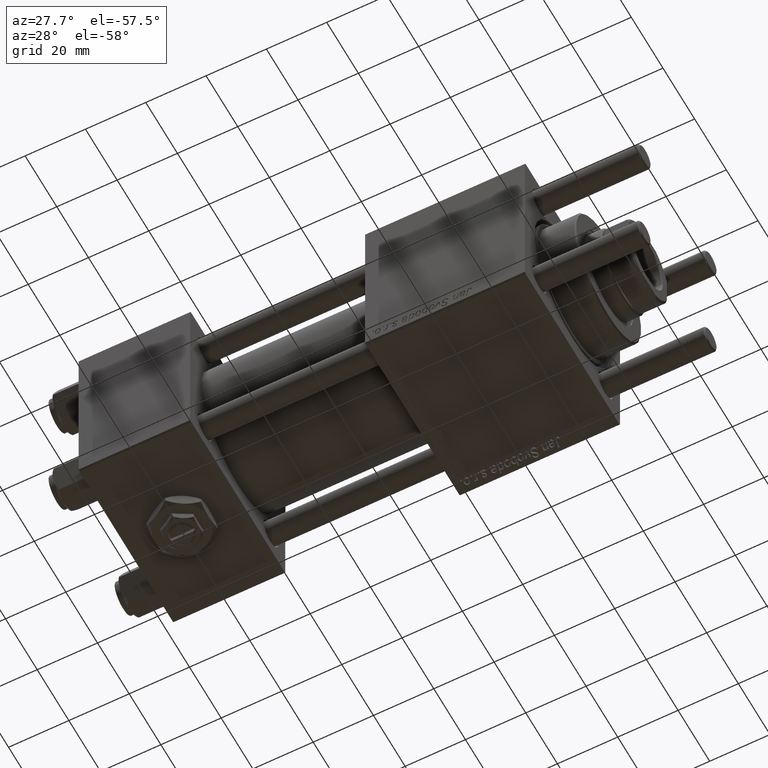
[diagram: clean part render]
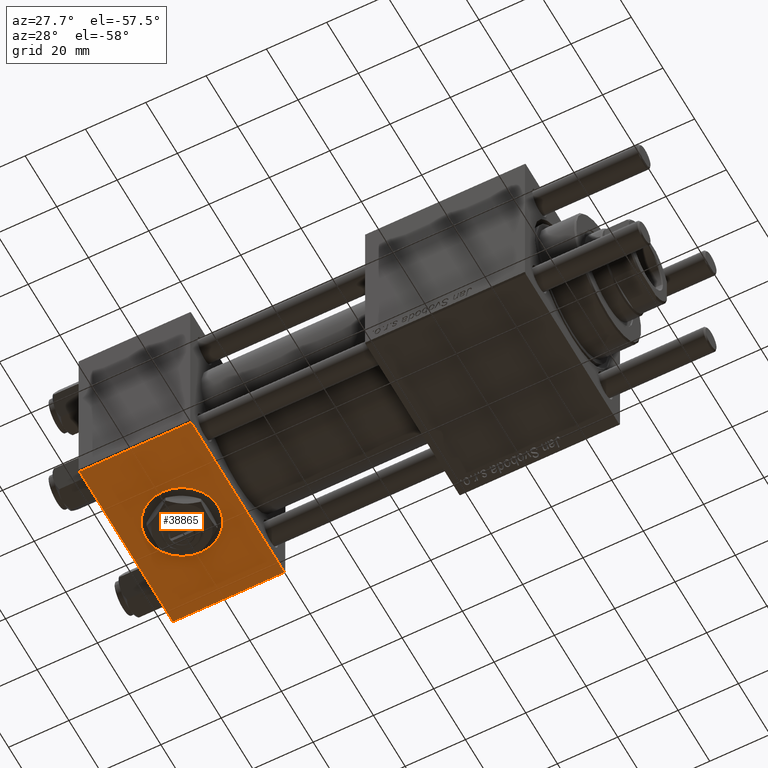
[diagram: same view with one face highlighted and labeled with its STEP entity id]
A machine part, auxiliary view. The second image highlights one B-rep face of the part: STEP entity #38865.
In plain terms, the highlighted planar face has unit normal (0, 0, -1).
Its self-contained STEP definition (entity closure, byte-faithful):
#15 = CARTESIAN_POINT ( 'NONE',  ( 0.000000000000000000, -29.50000000000000000, -30.00000000000000711 ) ) ;
#1673 = CARTESIAN_POINT ( 'NONE',  ( 0.000000000000000000, 29.99999999999999289, -30.00000000000000000 ) ) ;
#2518 = CARTESIAN_POINT ( 'NONE',  ( 37.00000000000000000, 29.99999999999999289, -30.00000000000000000 ) ) ;
#2575 = CARTESIAN_POINT ( 'NONE',  ( 37.00000000000000000, -29.50000000000000000, -30.00000000000000711 ) ) ;
#2889 = VERTEX_POINT ( 'NONE', #21973 ) ;
#3768 = EDGE_CURVE ( 'NONE', #47755, #53820, #36543, .T. ) ;
#4067 = CARTESIAN_POINT ( 'NONE',  ( 18.50000000000000355, 12.00000000000000355, -30.00000000000000711 ) ) ;
#6963 = DIRECTION ( 'NONE',  ( 0.000000000000000000, -1.000000000000000000, -1.156482317317871725E-16 ) ) ;
#9403 = LINE ( 'NONE', #27481, #41468 ) ;
#9572 = DIRECTION ( 'NONE',  ( 0.000000000000000000, -1.734723475976806848E-16, -1.000000000000000000 ) ) ;
#12965 = EDGE_CURVE ( 'NONE', #2889, #45338, #20592, .T. ) ;
#12995 = EDGE_CURVE ( 'NONE', #53820, #24082, #39392, .T. ) ;
#13316 = ORIENTED_EDGE ( 'NONE', *, *, #12995, .T. ) ;
#13902 = DIRECTION ( 'NONE',  ( -1.000000000000000000, 0.000000000000000000, 0.000000000000000000 ) ) ;
#13968 = ORIENTED_EDGE ( 'NONE', *, *, #3768, .T. ) ;
#14028 = CIRCLE ( 'NONE', #50937, 12.00000000000000178 ) ;
#14600 = DIRECTION ( 'NONE',  ( 0.000000000000000000, 1.000000000000000000, -2.891205793294677833E-16 ) ) ;
#15186 = EDGE_CURVE ( 'NONE', #45338, #2889, #14028, .T. ) ;
#16168 = ORIENTED_EDGE ( 'NONE', *, *, #40084, .F. ) ;
#17374 = ORIENTED_EDGE ( 'NONE', *, *, #15186, .F. ) ;
#20592 = CIRCLE ( 'NONE', #49874, 12.00000000000000178 ) ;
#21226 = VECTOR ( 'NONE', #32104, 1000.000000000000000 ) ;
#21466 = ORIENTED_EDGE ( 'NONE', *, *, #47953, .T. ) ;
#21973 = CARTESIAN_POINT ( 'NONE',  ( 18.50000000000000355, -12.00000000000000000, -30.00000000000000000 ) ) ;
#23170 = EDGE_LOOP ( 'NONE', ( #16168, #21466, #13968, #13316 ) ) ;
#23259 = VECTOR ( 'NONE', #6963, 1000.000000000000000 ) ;
#24082 = VERTEX_POINT ( 'NONE', #15 ) ;
#25026 = FACE_BOUND ( 'NONE', #34798, .T. ) ;
#25320 = DIRECTION ( 'NONE',  ( 0.000000000000000000, 1.156482317317871725E-16, -1.000000000000000000 ) ) ;
#27481 = CARTESIAN_POINT ( 'NONE',  ( 37.00000000000000000, 29.49999999999997868, -30.00000000000000000 ) ) ;
#32104 = DIRECTION ( 'NONE',  ( 0.000000000000000000, -1.000000000000000000, -1.156482317317871725E-16 ) ) ;
#34798 = EDGE_LOOP ( 'NONE', ( #17374, #51520 ) ) ;
#36543 = LINE ( 'NONE', #37414, #21226 ) ;
#37414 = CARTESIAN_POINT ( 'NONE',  ( 37.00000000000000000, 29.99999999999999289, -30.00000000000000000 ) ) ;
#38382 = CARTESIAN_POINT ( 'NONE',  ( 0.000000000000000000, 29.49999999999997868, -30.00000000000000000 ) ) ;
#38865 = ADVANCED_FACE ( 'NONE', ( #25026, #56725 ), #43071, .T. ) ;
#39392 = LINE ( 'NONE', #49438, #52719 ) ;
#40084 = EDGE_CURVE ( 'NONE', #40842, #24082, #42221, .T. ) ;
#40842 = VERTEX_POINT ( 'NONE', #38382 ) ;
#41468 = VECTOR ( 'NONE', #50863, 1000.000000000000000 ) ;
#42221 = LINE ( 'NONE', #1673, #23259 ) ;
#43071 = PLANE ( 'NONE',  #52644 ) ;
#43363 = DIRECTION ( 'NONE',  ( 0.000000000000000000, 1.000000000000000000, 1.156482317317871725E-16 ) ) ;
#43538 = DIRECTION ( 'NONE',  ( 0.000000000000000000, 1.000000000000000000, -2.891205793294677833E-16 ) ) ;
#45338 = VERTEX_POINT ( 'NONE', #4067 ) ;
#47755 = VERTEX_POINT ( 'NONE', #53849 ) ;
#47953 = EDGE_CURVE ( 'NONE', #40842, #47755, #9403, .T. ) ;
#48857 = CARTESIAN_POINT ( 'NONE',  ( 18.50000000000000355, 2.265018109976774967E-15, -30.00000000000000355 ) ) ;
#49150 = DIRECTION ( 'NONE',  ( 0.000000000000000000, -1.734723475976806848E-16, -1.000000000000000000 ) ) ;
#49438 = CARTESIAN_POINT ( 'NONE',  ( 0.000000000000000000, -29.50000000000001066, -30.00000000000000711 ) ) ;
#49874 = AXIS2_PLACEMENT_3D ( 'NONE', #48857, #49150, #43538 ) ;
#50442 = CARTESIAN_POINT ( 'NONE',  ( 18.50000000000000355, 2.265018109976774967E-15, -30.00000000000000355 ) ) ;
#50863 = DIRECTION ( 'NONE',  ( 1.000000000000000000, 0.000000000000000000, 0.000000000000000000 ) ) ;
#50937 = AXIS2_PLACEMENT_3D ( 'NONE', #50442, #9572, #14600 ) ;
#51520 = ORIENTED_EDGE ( 'NONE', *, *, #12965, .F. ) ;
#52644 = AXIS2_PLACEMENT_3D ( 'NONE', #2518, #25320, #43363 ) ;
#52719 = VECTOR ( 'NONE', #13902, 1000.000000000000000 ) ;
#53820 = VERTEX_POINT ( 'NONE', #2575 ) ;
#53849 = CARTESIAN_POINT ( 'NONE',  ( 37.00000000000000000, 29.49999999999997868, -30.00000000000000000 ) ) ;
#56725 = FACE_OUTER_BOUND ( 'NONE', #23170, .T. ) ;